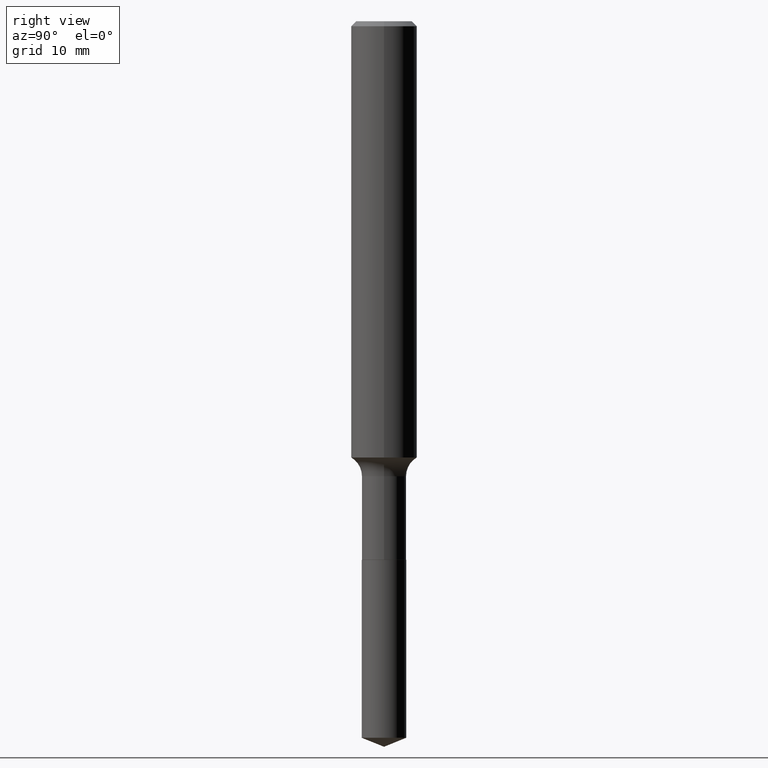
[diagram: clean part render]
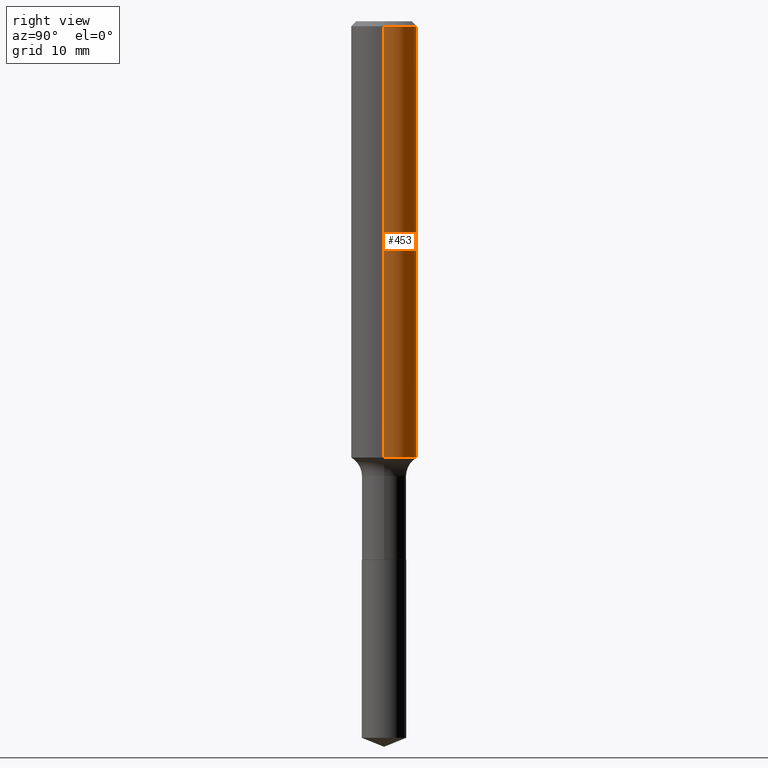
[diagram: same view with one face highlighted and labeled with its STEP entity id]
A machine part, right view. The second image highlights one B-rep face of the part: STEP entity #453.
In plain terms, the highlighted cylindrical surface (edge-blend (fillet) strip) has radius 2.9997 mm, axis along (-0, 0, 1).
Its self-contained STEP definition (entity closure, byte-faithful):
#21 = ORIENTED_EDGE ( 'NONE', *, *, #208, .F. ) ;
#28 = EDGE_CURVE ( 'NONE', #474, #64, #485, .T. ) ;
#43 = FACE_OUTER_BOUND ( 'NONE', #288, .T. ) ;
#49 = AXIS2_PLACEMENT_3D ( 'NONE', #383, #279, #165 ) ;
#64 = VERTEX_POINT ( 'NONE', #487 ) ;
#81 = CARTESIAN_POINT ( 'NONE',  ( 0.000000000000000000, 0.000000000000000000, 0.000000000000000000 ) ) ;
#91 = CARTESIAN_POINT ( 'NONE',  ( 0.1181000000000001077, -8.246878922347488542E-16, 5.758764772215005345E-30 ) ) ;
#108 = CARTESIAN_POINT ( 'NONE',  ( 0.1180999999999999966, -8.865394841523547570E-16, -0.01771500000000010913 ) ) ;
#122 = DIRECTION ( 'NONE',  ( -2.445468806185136877E-29, 3.491481338843145188E-15, 1.000000000000000000 ) ) ;
#136 = VERTEX_POINT ( 'NONE', #108 ) ;
#147 = CIRCLE ( 'NONE', #49, 0.1180999999999999966 ) ;
#155 = CARTESIAN_POINT ( 'NONE',  ( 0.1181000000000001493, -6.279368237559145671E-15, -1.562282543125872225 ) ) ;
#161 = DIRECTION ( 'NONE',  ( -2.445468806185136597E-29, 3.491481338843145583E-15, 1.000000000000000000 ) ) ;
#163 = LINE ( 'NONE', #91, #181 ) ;
#165 = DIRECTION ( 'NONE',  ( 1.000000000000000000, -6.982962677686266711E-15, 0.000000000000000000 ) ) ;
#171 = ORIENTED_EDGE ( 'NONE', *, *, #228, .F. ) ;
#181 = VECTOR ( 'NONE', #425, 39.37007874015748143 ) ;
#184 = DIRECTION ( 'NONE',  ( -2.445468806185136597E-29, 3.491481338843145583E-15, 1.000000000000000000 ) ) ;
#201 = CARTESIAN_POINT ( 'NONE',  ( -0.1180999999999999966, -1.919114997688321240E-15, -0.01771500000000010913 ) ) ;
#208 = EDGE_CURVE ( 'NONE', #136, #215, #147, .T. ) ;
#215 = VERTEX_POINT ( 'NONE', #201 ) ;
#217 = ORIENTED_EDGE ( 'NONE', *, *, #28, .T. ) ;
#228 = EDGE_CURVE ( 'NONE', #474, #136, #163, .T. ) ;
#236 = CYLINDRICAL_SURFACE ( 'NONE', #400, 0.1181000000000001077 ) ;
#254 = EDGE_CURVE ( 'NONE', #64, #215, #272, .T. ) ;
#272 = LINE ( 'NONE', #421, #431 ) ;
#279 = DIRECTION ( 'NONE',  ( -2.445468806185136597E-29, 3.491481338843145583E-15, 1.000000000000000000 ) ) ;
#288 = EDGE_LOOP ( 'NONE', ( #217, #290, #21, #171 ) ) ;
#290 = ORIENTED_EDGE ( 'NONE', *, *, #254, .T. ) ;
#339 = DIRECTION ( 'NONE',  ( 1.000000000000000000, -6.982962677686268288E-15, 0.000000000000000000 ) ) ;
#344 = DIRECTION ( 'NONE',  ( 1.000000000000000000, -6.982962677686266711E-15, 4.876176775795935793E-29 ) ) ;
#374 = CARTESIAN_POINT ( 'NONE',  ( 3.820513225661906299E-29, -5.454680345324395042E-15, -1.562282543125872225 ) ) ;
#383 = CARTESIAN_POINT ( 'NONE',  ( 4.332147990156996744E-31, -6.185159191760670395E-17, -0.01771500000000010913 ) ) ;
#399 = AXIS2_PLACEMENT_3D ( 'NONE', #374, #184, #339 ) ;
#400 = AXIS2_PLACEMENT_3D ( 'NONE', #81, #161, #344 ) ;
#421 = CARTESIAN_POINT ( 'NONE',  ( -0.1181000000000001077, 8.391509709326790846E-16, -5.809262341591049389E-30 ) ) ;
#425 = DIRECTION ( 'NONE',  ( -2.445468806185136877E-29, 3.491481338843145188E-15, 1.000000000000000000 ) ) ;
#431 = VECTOR ( 'NONE', #122, 39.37007874015748143 ) ;
#453 = ADVANCED_FACE ( 'NONE', ( #43 ), #236, .T. ) ;
#474 = VERTEX_POINT ( 'NONE', #155 ) ;
#485 = CIRCLE ( 'NONE', #399, 0.1181000000000002048 ) ;
#487 = CARTESIAN_POINT ( 'NONE',  ( -0.1181000000000001493, -4.615529374391714478E-15, -1.562282543125872225 ) ) ;